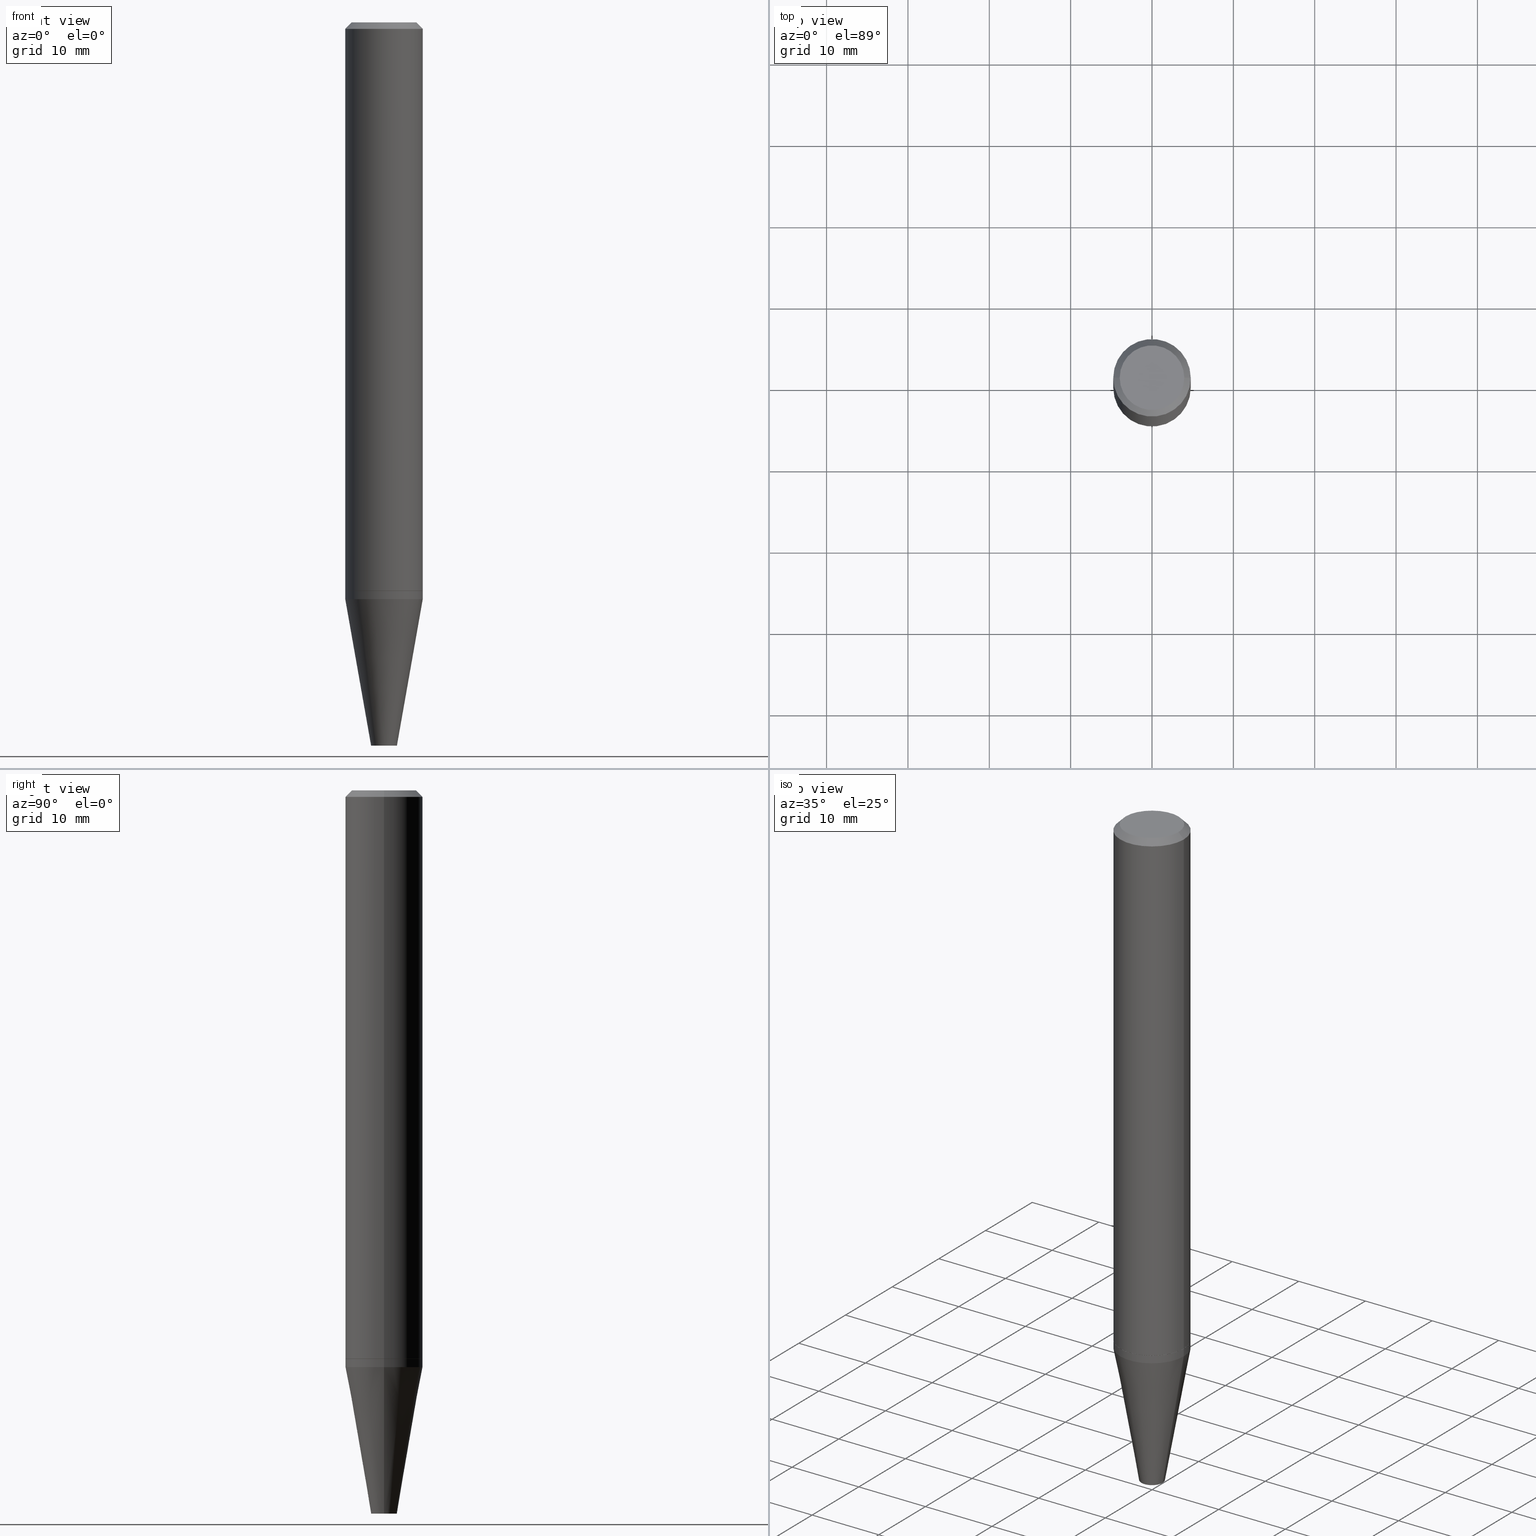
[diagram: canonical four-view strip — front | top / right | iso, engineering-drawing reading convention]
A machine part, canonical four-view strip (front | top / right | iso — engineering-drawing reading convention). The complete STEP part file that produces these views, byte-faithful:
ISO-10303-21;
HEADER;
FILE_DESCRIPTION (( 'STEP AP203' ),
    '1' );
FILE_NAME ('32327.STEP',
    '2024-03-04T15:06:20',
    ( '' ),
    ( '' ),
    'SwSTEP 2.0',
    'SolidWorks 2023',
    '' );
FILE_SCHEMA (( 'CONFIG_CONTROL_DESIGN' ));
ENDSEC;

DATA;
#1 = DIRECTION ( 'NONE',  ( 1.000000000000000000, -6.982962677686265922E-15, 0.000000000000000000 ) ) ;
#2 = AXIS2_PLACEMENT_3D ( 'NONE', #80, #145, #307 ) ;
#3 = ORIENTED_EDGE ( 'NONE', *, *, #171, .F. ) ;
#4 = EDGE_CURVE ( 'NONE', #332, #9, #268, .T. ) ;
#5 = EDGE_LOOP ( 'NONE', ( #388, #94, #312, #299 ) ) ;
#6 = DIRECTION ( 'NONE',  ( -2.445468806185136597E-29, 3.491481338843145583E-15, 1.000000000000000000 ) ) ;
#7 = CIRCLE ( 'NONE', #43, 0.1875000000000000278 ) ;
#8 = CC_DESIGN_APPROVAL ( #199, ( #249 ) ) ;
#9 = VERTEX_POINT ( 'NONE', #231 ) ;
#10 = DIRECTION ( 'NONE',  ( 1.000000000000000000, -6.982962677686256455E-15, 0.000000000000000000 ) ) ;
#11 = EDGE_LOOP ( 'NONE', ( #220, #30 ) ) ;
#12 = APPROVAL ( #97, 'UNSPECIFIED' ) ;
#13 = DIRECTION ( 'NONE',  ( -2.445468806185136597E-29, 3.491481338843145583E-15, 1.000000000000000000 ) ) ;
#14 = EDGE_LOOP ( 'NONE', ( #48, #384 ) ) ;
#15 = CARTESIAN_POINT ( 'NONE',  ( 8.559140821647976968E-29, -1.222018468595100934E-14, -3.500000000000000000 ) ) ;
#16 = CARTESIAN_POINT ( 'NONE',  ( 0.000000000000000000, 0.000000000000000000, 0.000000000000000000 ) ) ;
#17 = CIRCLE ( 'NONE', #262, 0.06250000000000005551 ) ;
#18 = LOCAL_TIME ( 10, 6, 20.00000000000000000, #287 ) ;
#19 = CYLINDRICAL_SURFACE ( 'NONE', #229, 0.1875000000000001943 ) ;
#20 = CARTESIAN_POINT ( 'NONE',  ( 4.364351673554776059E-16, 0.06249999999998784306, -3.500000000000000000 ) ) ;
#21 = DIRECTION ( 'NONE',  ( -2.445468806185136597E-29, 3.491481338843145583E-15, 1.000000000000000000 ) ) ;
#22 = EDGE_CURVE ( 'NONE', #316, #415, #394, .T. ) ;
#23 = DIRECTION ( 'NONE',  ( -2.438088387897960049E-29, 3.491481338843145188E-15, 1.000000000000000000 ) ) ;
#24 = CARTESIAN_POINT ( 'NONE',  ( -0.1870000000000003604, -8.272858765947260543E-15, -2.750000000000000000 ) ) ;
#25 = CONICAL_SURFACE ( 'NONE', #201, 0.06250000000000005551, 0.1745329251994259256 ) ;
#26 = PLANE ( 'NONE',  #345 ) ;
#27 = ORIENTED_EDGE ( 'NONE', *, *, #358, .T. ) ;
#28 = PERSON_AND_ORGANIZATION ( #371, #306 ) ;
#29 = ADVANCED_FACE ( 'NONE', ( #101 ), #120, .T. ) ;
#30 = ORIENTED_EDGE ( 'NONE', *, *, #351, .T. ) ;
#31 = APPROVAL_STATUS ( 'not_yet_approved' ) ;
#32 = ORIENTED_EDGE ( 'NONE', *, *, #221, .F. ) ;
#33 = ADVANCED_FACE ( 'NONE', ( #353 ), #68, .F. ) ;
#34 = SHAPE_DEFINITION_REPRESENTATION ( #376, #298 ) ;
#35 = DIRECTION ( 'NONE',  ( -2.445468806185136597E-29, 3.491481338843145583E-15, 1.000000000000000000 ) ) ;
#36 = CIRCLE ( 'NONE', #335, 0.1875000000000000278 ) ;
#37 = ORIENTED_EDGE ( 'NONE', *, *, #215, .T. ) ;
#38 = ADVANCED_FACE ( 'NONE', ( #198 ), #47, .T. ) ;
#39 = APPLICATION_CONTEXT ( 'configuration controlled 3d designs of mechanical parts and assemblies' ) ;
#40 = CARTESIAN_POINT ( 'NONE',  ( -0.1870000000000003604, -8.270209538773150130E-15, -2.750000000000000000 ) ) ;
#41 = CIRCLE ( 'NONE', #105, 0.1870000000000003604 ) ;
#42 = DIRECTION ( 'NONE',  ( 1.000000000000000000, -6.982962677686269077E-15, 0.000000000000000000 ) ) ;
#43 = AXIS2_PLACEMENT_3D ( 'NONE', #280, #83, #242 ) ;
#44 = LOCAL_TIME ( 10, 6, 20.00000000000000000, #224 ) ;
#45 = ORIENTED_EDGE ( 'NONE', *, *, #84, .T. ) ;
#46 = EDGE_CURVE ( 'NONE', #167, #91, #41, .T. ) ;
#47 = CYLINDRICAL_SURFACE ( 'NONE', #387, 0.1875000000000000278 ) ;
#48 = ORIENTED_EDGE ( 'NONE', *, *, #359, .F. ) ;
#49 = CARTESIAN_POINT ( 'NONE',  ( 0.1870000000000003604, -1.090738770254598344E-14, -2.750000000000000000 ) ) ;
#50 = ORIENTED_EDGE ( 'NONE', *, *, #170, .F. ) ;
#51 = LINE ( 'NONE', #123, #328 ) ;
#52 = DIRECTION ( 'NONE',  ( 0.000000000000000000, 0.000000000000000000, 1.000000000000000000 ) ) ;
#53 = DIRECTION ( 'NONE',  ( 2.438088387897960049E-29, -3.491481338843145188E-15, -1.000000000000000000 ) ) ;
#54 = EDGE_CURVE ( 'NONE', #236, #332, #225, .T. ) ;
#55 = CARTESIAN_POINT ( 'NONE',  ( 0.1562500000000000833, -1.233702489286406538E-15, 8.128494228692102296E-30 ) ) ;
#56 = ORIENTED_EDGE ( 'NONE', *, *, #99, .F. ) ;
#57 = DIRECTION ( 'NONE',  ( 1.000000000000000000, -6.982962677686265922E-15, 4.876176775795935793E-29 ) ) ;
#58 = EDGE_LOOP ( 'NONE', ( #134, #27, #130, #401 ) ) ;
#59 = AXIS2_PLACEMENT_3D ( 'NONE', #243, #207, #250 ) ;
#60 = FACE_OUTER_BOUND ( 'NONE', #289, .T. ) ;
#61 = DATE_AND_TIME ( #346, #18 ) ;
#62 = DATE_TIME_ROLE ( 'classification_date' ) ;
#63 = ORIENTED_EDGE ( 'NONE', *, *, #275, .T. ) ;
#64 = AXIS2_PLACEMENT_3D ( 'NONE', #357, #74, #42 ) ;
#65 = DIRECTION ( 'NONE',  ( 1.000000000000000000, -6.982962677686266711E-15, 4.876176775795935232E-29 ) ) ;
#66 = CIRCLE ( 'NONE', #226, 0.1875000000000000278 ) ;
#67 = AXIS2_PLACEMENT_3D ( 'NONE', #324, #327, #331 ) ;
#68 = PLANE ( 'NONE',  #168 ) ;
#69 = EDGE_CURVE ( 'NONE', #174, #9, #66, .T. ) ;
#70 = CARTESIAN_POINT ( 'NONE',  ( 0.1870000000000003604, -1.090738770254598344E-14, -2.750000000000000000 ) ) ;
#71 = AXIS2_PLACEMENT_3D ( 'NONE', #314, #378, #125 ) ;
#72 = ORIENTED_EDGE ( 'NONE', *, *, #54, .F. ) ;
#73 = DIRECTION ( 'NONE',  ( -2.445468806185136597E-29, 3.491481338843145583E-15, 1.000000000000000000 ) ) ;
#74 = DIRECTION ( 'NONE',  ( -2.445468806185136597E-29, 3.491481338843145583E-15, 1.000000000000000000 ) ) ;
#75 = VECTOR ( 'NONE', #273, 39.37007874015748143 ) ;
#76 = ORIENTED_EDGE ( 'NONE', *, *, #46, .F. ) ;
#77 = DIRECTION ( 'NONE',  ( 2.438088387897960049E-29, -3.491481338843145188E-15, -1.000000000000000000 ) ) ;
#78 = FACE_OUTER_BOUND ( 'NONE', #192, .T. ) ;
#79 = EDGE_LOOP ( 'NONE', ( #141, #76 ) ) ;
#80 = CARTESIAN_POINT ( 'NONE',  ( 7.642090019328561499E-31, -1.091087918388484350E-16, -0.03125000000000003469 ) ) ;
#81 =( NAMED_UNIT ( * ) PLANE_ANGLE_UNIT ( ) SI_UNIT ( $, .RADIAN. ) );
#82 = CARTESIAN_POINT ( 'NONE',  ( 0.000000000000000000, 0.000000000000000000, 0.000000000000000000 ) ) ;
#83 = DIRECTION ( 'NONE',  ( -2.445468806185136597E-29, 3.491481338843145583E-15, 1.000000000000000000 ) ) ;
#84 = EDGE_CURVE ( 'NONE', #183, #319, #173, .T. ) ;
#85 = AXIS2_PLACEMENT_3D ( 'NONE', #212, #277, #119 ) ;
#86 =( GEOMETRIC_REPRESENTATION_CONTEXT ( 3 ) GLOBAL_UNCERTAINTY_ASSIGNED_CONTEXT ( ( #230 ) ) GLOBAL_UNIT_ASSIGNED_CONTEXT ( ( #210, #81, #147 ) ) REPRESENTATION_CONTEXT ( 'NONE', 'WORKASPACE' ) );
#87 = FACE_OUTER_BOUND ( 'NONE', #79, .T. ) ;
#88 = PERSON_AND_ORGANIZATION ( #371, #306 ) ;
#89 = CARTESIAN_POINT ( 'NONE',  ( 0.1875000000000003886, -1.090913344321540415E-14, -2.749499999999999833 ) ) ;
#90 = CARTESIAN_POINT ( 'NONE',  ( 6.725039217009124520E-29, -9.601573681818649859E-15, -2.750000000000000000 ) ) ;
#91 = VERTEX_POINT ( 'NONE', #49 ) ;
#92 = DIRECTION ( 'NONE',  ( -1.000000000000000000, 6.982962677686265922E-15, -4.876176775795935793E-29 ) ) ;
#93 = PERSON_AND_ORGANIZATION_ROLE ( 'classification_officer' ) ;
#94 = ORIENTED_EDGE ( 'NONE', *, *, #99, .T. ) ;
#95 = AXIS2_PLACEMENT_3D ( 'NONE', #304, #368, #206 ) ;
#96 = VECTOR ( 'NONE', #143, 39.37007874015748143 ) ;
#97 = APPROVAL_STATUS ( 'not_yet_approved' ) ;
#98 = PERSON_AND_ORGANIZATION ( #371, #306 ) ;
#99 = EDGE_CURVE ( 'NONE', #332, #236, #155, .T. ) ;
#100 = ADVANCED_FACE ( 'NONE', ( #175 ), #189, .T. ) ;
#101 = FACE_OUTER_BOUND ( 'NONE', #395, .T. ) ;
#102 = AXIS2_PLACEMENT_3D ( 'NONE', #208, #337, #65 ) ;
#103 = DIRECTION ( 'NONE',  ( -2.445468806185136877E-29, 3.491481338843145188E-15, 1.000000000000000000 ) ) ;
#104 = EDGE_CURVE ( 'NONE', #91, #316, #269, .T. ) ;
#105 = AXIS2_PLACEMENT_3D ( 'NONE', #291, #73, #329 ) ;
#106 = LOCAL_TIME ( 10, 6, 20.00000000000000000, #126 ) ;
#107 = EDGE_LOOP ( 'NONE', ( #240, #377, #362, #127 ) ) ;
#108 = CC_DESIGN_DATE_AND_TIME_ASSIGNMENT ( #350, #382, ( #182 ) ) ;
#109 = CARTESIAN_POINT ( 'NONE',  ( 0.000000000000000000, 0.000000000000000000, 0.000000000000000000 ) ) ;
#110 = LINE ( 'NONE', #383, #139 ) ;
#111 = ORIENTED_EDGE ( 'NONE', *, *, #135, .T. ) ;
#112 = CARTESIAN_POINT ( 'NONE',  ( 0.06250000000000005551, -1.265661985330639943E-14, -3.500000000000000000 ) ) ;
#113 = LENGTH_MEASURE_WITH_UNIT ( LENGTH_MEASURE( 0.02539999999999999897 ), #247 );
#114 = CIRCLE ( 'NONE', #102, 0.1562500000000000833 ) ;
#115 = APPLICATION_CONTEXT ( 'configuration controlled 3d designs of mechanical parts and assemblies' ) ;
#116 = ORIENTED_EDGE ( 'NONE', *, *, #381, .T. ) ;
#117 = DIRECTION ( 'NONE',  ( 2.445468806185136597E-29, -3.491481338843145583E-15, -1.000000000000000000 ) ) ;
#118 = APPROVAL ( #339, 'UNSPECIFIED' ) ;
#119 = DIRECTION ( 'NONE',  ( -1.000000000000000000, 6.982962677686265922E-15, 0.000000000000000000 ) ) ;
#120 = CONICAL_SURFACE ( 'NONE', #286, 0.1870000000000003604, 0.7853981633973118326 ) ;
#121 = DIRECTION ( 'NONE',  ( -2.445468806185136597E-29, 3.491481338843145583E-15, 1.000000000000000000 ) ) ;
#122 = APPLICATION_PROTOCOL_DEFINITION ( 'international standard', 'config_control_design', 1994, #115 ) ;
#123 = CARTESIAN_POINT ( 'NONE',  ( -0.06250000000000005551, -1.177609547610094673E-14, -3.500000000000000000 ) ) ;
#124 = EDGE_CURVE ( 'NONE', #349, #319, #36, .T. ) ;
#125 = DIRECTION ( 'NONE',  ( -1.000000000000000000, 6.982962677686265922E-15, -4.876176775795935793E-29 ) ) ;
#126 = COORDINATED_UNIVERSAL_TIME_OFFSET ( 5, 0, .BEHIND. ) ;
#127 = ORIENTED_EDGE ( 'NONE', *, *, #276, .F. ) ;
#128 = CLOSED_SHELL ( 'NONE', ( #38, #161, #325, #100, #290, #33 ) ) ;
#129 = COORDINATED_UNIVERSAL_TIME_OFFSET ( 5, 0, .BEHIND. ) ;
#130 = ORIENTED_EDGE ( 'NONE', *, *, #124, .T. ) ;
#131 = LOCAL_TIME ( 10, 6, 20.00000000000000000, #129 ) ;
#132 = DATE_AND_TIME ( #282, #106 ) ;
#133 = MANIFOLD_SOLID_BREP ( 'Body-Move/Copy2[1]', #128 ) ;
#134 = ORIENTED_EDGE ( 'NONE', *, *, #340, .F. ) ;
#135 = EDGE_CURVE ( 'NONE', #91, #167, #288, .T. ) ;
#136 = VECTOR ( 'NONE', #103, 39.37007874015748143 ) ;
#137 = CARTESIAN_POINT ( 'NONE',  ( 1.309305502066242259E-15, 0.1874999999999904243, -2.750000000000000444 ) ) ;
#138 = VERTEX_POINT ( 'NONE', #354 ) ;
#139 = VECTOR ( 'NONE', #363, 39.37007874015748143 ) ;
#140 = CARTESIAN_POINT ( 'NONE',  ( 7.642090019328561499E-31, -1.091087918388484350E-16, -0.03125000000000003469 ) ) ;
#141 = ORIENTED_EDGE ( 'NONE', *, *, #135, .F. ) ;
#142 = CC_DESIGN_PERSON_AND_ORGANIZATION_ASSIGNMENT ( #278, #405, ( #284 ) ) ;
#143 = DIRECTION ( 'NONE',  ( 0.7071067811864509833, -2.468850131081245741E-15, 0.7071067811866440511 ) ) ;
#144 = DIRECTION ( 'NONE',  ( -2.445468806185136597E-29, 3.491481338843145583E-15, 1.000000000000000000 ) ) ;
#145 = DIRECTION ( 'NONE',  ( -2.445468806185136597E-29, 3.491481338843145583E-15, 1.000000000000000000 ) ) ;
#146 = VECTOR ( 'NONE', #152, 39.37007874015748143 ) ;
#147 =( NAMED_UNIT ( * ) SI_UNIT ( $, .STERADIAN. ) SOLID_ANGLE_UNIT ( ) );
#148 = PLANE ( 'NONE',  #179 ) ;
#149 = CARTESIAN_POINT ( 'NONE',  ( 6.725039217009124520E-29, -9.601573681818649859E-15, -2.750000000000000000 ) ) ;
#150 = ORIENTED_EDGE ( 'NONE', *, *, #381, .F. ) ;
#151 = FACE_OUTER_BOUND ( 'NONE', #5, .T. ) ;
#152 = DIRECTION ( 'NONE',  ( -0.7071067811864509833, 7.493145998870005484E-15, 0.7071067811866440511 ) ) ;
#153 = CIRCLE ( 'NONE', #2, 0.1875000000000000278 ) ;
#154 = DIRECTION ( 'NONE',  ( 1.000000000000000000, -6.982962677686266711E-15, 4.876176775795935232E-29 ) ) ;
#155 = CIRCLE ( 'NONE', #67, 0.1875000000000000278 ) ;
#156 = SECURITY_CLASSIFICATION_LEVEL ( 'unclassified' ) ;
#157 = ORIENTED_EDGE ( 'NONE', *, *, #46, .T. ) ;
#158 = CALENDAR_DATE ( 2024, 4, 3 ) ;
#159 = EDGE_LOOP ( 'NONE', ( #232, #409 ) ) ;
#160 = VECTOR ( 'NONE', #238, 39.37007874015748143 ) ;
#161 = ADVANCED_FACE ( 'NONE', ( #267 ), #25, .T. ) ;
#162 = LOCAL_TIME ( 10, 6, 20.00000000000000000, #320 ) ;
#163 = EDGE_LOOP ( 'NONE', ( #293, #63, #390, #56 ) ) ;
#164 = DIRECTION ( 'NONE',  ( -1.000000000000000000, 6.982962677686265922E-15, -4.876176775795935793E-29 ) ) ;
#165 = ORIENTED_EDGE ( 'NONE', *, *, #104, .T. ) ;
#166 = CONICAL_SURFACE ( 'NONE', #259, 0.1875000000000000278, 0.7853981633974467247 ) ;
#167 = VERTEX_POINT ( 'NONE', #40 ) ;
#168 = AXIS2_PLACEMENT_3D ( 'NONE', #137, #77, #164 ) ;
#169 = LINE ( 'NONE', #112, #160 ) ;
#170 = EDGE_CURVE ( 'NONE', #415, #319, #110, .T. ) ;
#171 = EDGE_CURVE ( 'NONE', #138, #236, #169, .T. ) ;
#172 = ORIENTED_EDGE ( 'NONE', *, *, #359, .T. ) ;
#173 = LINE ( 'NONE', #323, #369 ) ;
#174 = VERTEX_POINT ( 'NONE', #184 ) ;
#175 = FACE_OUTER_BOUND ( 'NONE', #163, .T. ) ;
#176 = APPLICATION_PROTOCOL_DEFINITION ( 'international standard', 'config_control_design', 1994, #39 ) ;
#177 = EDGE_LOOP ( 'NONE', ( #172, #356, #72, #3 ) ) ;
#178 = LINE ( 'NONE', #402, #326 ) ;
#179 = AXIS2_PLACEMENT_3D ( 'NONE', #149, #23, #57 ) ;
#180 = AXIS2_PLACEMENT_3D ( 'NONE', #16, #52, #244 ) ;
#181 = CARTESIAN_POINT ( 'NONE',  ( 7.642090019328561499E-31, -1.091087918388484350E-16, -0.03125000000000003469 ) ) ;
#182 = PRODUCT_DEFINITION ( 'UNKNOWN', '', #197, #294 ) ;
#183 = VERTEX_POINT ( 'NONE', #279 ) ;
#184 = CARTESIAN_POINT ( 'NONE',  ( 0.1875000000000000278, -1.091087918388482487E-14, -2.750000000000000000 ) ) ;
#185 = LINE ( 'NONE', #400, #271 ) ;
#186 = ORIENTED_EDGE ( 'NONE', *, *, #202, .F. ) ;
#187 = ADVANCED_FACE ( 'NONE', ( #87 ), #148, .F. ) ;
#188 = FACE_OUTER_BOUND ( 'NONE', #159, .T. ) ;
#189 = CONICAL_SURFACE ( 'NONE', #322, 0.06250000000000005551, 0.1745329251994259256 ) ;
#190 = CARTESIAN_POINT ( 'NONE',  ( -0.06250000000000005551, -1.009443285121860521E-14, -3.500000000000000000 ) ) ;
#191 = PERSON_AND_ORGANIZATION_ROLE ( 'creator' ) ;
#192 = EDGE_LOOP ( 'NONE', ( #50, #347, #296, #303 ) ) ;
#193 = PERSON_AND_ORGANIZATION ( #371, #306 ) ;
#194 = ADVANCED_FACE ( 'NONE', ( #311 ), #361, .T. ) ;
#195 = ORIENTED_EDGE ( 'NONE', *, *, #104, .F. ) ;
#196 = AXIS2_PLACEMENT_3D ( 'NONE', #396, #258, #386 ) ;
#197 = PRODUCT_DEFINITION_FORMATION_WITH_SPECIFIED_SOURCE ( 'ANY', '', #284, .NOT_KNOWN. ) ;
#198 = FACE_OUTER_BOUND ( 'NONE', #107, .T. ) ;
#199 = APPROVAL ( #31, 'UNSPECIFIED' ) ;
#200 = DIRECTION ( 'NONE',  ( 1.000000000000000000, -6.982962677686261189E-15, 0.000000000000000000 ) ) ;
#201 = AXIS2_PLACEMENT_3D ( 'NONE', #393, #144, #204 ) ;
#202 = EDGE_CURVE ( 'NONE', #316, #349, #344, .T. ) ;
#203 = DIRECTION ( 'NONE',  ( -2.445468806185136597E-29, 3.491481338843145583E-15, 1.000000000000000000 ) ) ;
#204 = DIRECTION ( 'NONE',  ( 1.000000000000000000, -6.982962677686256455E-15, 0.000000000000000000 ) ) ;
#205 = DIRECTION ( 'NONE',  ( 1.000000000000000000, -6.982962677686261977E-15, 0.000000000000000000 ) ) ;
#206 = DIRECTION ( 'NONE',  ( 1.000000000000000000, -6.982962677686256455E-15, 0.000000000000000000 ) ) ;
#207 = DIRECTION ( 'NONE',  ( -2.445468806185136597E-29, 3.491481338843145583E-15, 1.000000000000000000 ) ) ;
#208 = CARTESIAN_POINT ( 'NONE',  ( 0.000000000000000000, 0.000000000000000000, 0.000000000000000000 ) ) ;
#209 = AXIS2_PLACEMENT_3D ( 'NONE', #90, #21, #315 ) ;
#210 =( CONVERSION_BASED_UNIT ( 'INCH', #113 ) LENGTH_UNIT ( ) NAMED_UNIT ( #260 ) );
#211 = APPROVAL_PERSON_ORGANIZATION ( #411, #12, #285 ) ;
#212 = CARTESIAN_POINT ( 'NONE',  ( 7.642090019328561499E-31, -1.091087918388484350E-16, -0.03125000000000003469 ) ) ;
#213 = CARTESIAN_POINT ( 'NONE',  ( 0.1875000000000000278, -1.418414293905023320E-15, -0.03125000000000003469 ) ) ;
#214 = EDGE_CURVE ( 'NONE', #321, #332, #51, .T. ) ;
#215 = EDGE_CURVE ( 'NONE', #319, #349, #153, .T. ) ;
#216 = FACE_OUTER_BOUND ( 'NONE', #330, .T. ) ;
#217 = FACE_OUTER_BOUND ( 'NONE', #223, .T. ) ;
#218 = PLANE ( 'NONE',  #71 ) ;
#219 = APPROVAL_ROLE ( '' ) ;
#220 = ORIENTED_EDGE ( 'NONE', *, *, #69, .T. ) ;
#221 = EDGE_CURVE ( 'NONE', #415, #316, #237, .T. ) ;
#222 = APPROVAL_DATE_TIME ( #318, #12 ) ;
#223 = EDGE_LOOP ( 'NONE', ( #150, #157, #165, #32 ) ) ;
#224 = COORDINATED_UNIVERSAL_TIME_OFFSET ( 5, 0, .BEHIND. ) ;
#225 = CIRCLE ( 'NONE', #235, 0.1875000000000000278 ) ;
#226 = AXIS2_PLACEMENT_3D ( 'NONE', #297, #6, #392 ) ;
#227 = CARTESIAN_POINT ( 'NONE',  ( 6.725039217009124520E-29, -9.601573681818649859E-15, -2.750000000000000000 ) ) ;
#228 = ORIENTED_EDGE ( 'NONE', *, *, #22, .F. ) ;
#229 = AXIS2_PLACEMENT_3D ( 'NONE', #82, #281, #410 ) ;
#230 = UNCERTAINTY_MEASURE_WITH_UNIT (LENGTH_MEASURE( 1.000000000000000082E-05 ), #210, 'distance_accuracy_value', 'NONE');
#231 = CARTESIAN_POINT ( 'NONE',  ( -0.1875000000000000278, -8.341038139302364435E-15, -2.750000000000000000 ) ) ;
#232 = ORIENTED_EDGE ( 'NONE', *, *, #248, .T. ) ;
#233 = ADVANCED_FACE ( 'NONE', ( #60 ), #166, .T. ) ;
#234 = DIRECTION ( 'NONE',  ( 1.000000000000000000, -6.982962677686265922E-15, 4.876176775795935793E-29 ) ) ;
#235 = AXIS2_PLACEMENT_3D ( 'NONE', #360, #203, #200 ) ;
#236 = VERTEX_POINT ( 'NONE', #404 ) ;
#237 = CIRCLE ( 'NONE', #59, 0.1875000000000003886 ) ;
#238 = DIRECTION ( 'NONE',  ( 0.1736481776669234200, 2.225859148293818106E-15, 0.9848077530122092416 ) ) ;
#239 = DIRECTION ( 'NONE',  ( 0.7071067811865464625, -7.319954787623252890E-15, -0.7071067811865486830 ) ) ;
#240 = ORIENTED_EDGE ( 'NONE', *, *, #54, .T. ) ;
#241 = CARTESIAN_POINT ( 'NONE',  ( -0.1875000000000000278, -3.522200736943847330E-15, -0.03125000000000003469 ) ) ;
#242 = DIRECTION ( 'NONE',  ( 1.000000000000000000, -6.982962677686261189E-15, 0.000000000000000000 ) ) ;
#243 = CARTESIAN_POINT ( 'NONE',  ( 6.723816482606031719E-29, -9.599827941149227567E-15, -2.749499999999999833 ) ) ;
#244 = DIRECTION ( 'NONE',  ( 1.000000000000000000, 0.000000000000000000, 0.000000000000000000 ) ) ;
#245 = DIRECTION ( 'NONE',  ( -2.445468806185136597E-29, 3.491481338843145583E-15, 1.000000000000000000 ) ) ;
#246 = AXIS2_PLACEMENT_3D ( 'NONE', #403, #308, #342 ) ;
#247 =( LENGTH_UNIT ( ) NAMED_UNIT ( * ) SI_UNIT ( $, .METRE. ) );
#248 = EDGE_CURVE ( 'NONE', #183, #251, #305, .T. ) ;
#249 = SECURITY_CLASSIFICATION ( '', '', #156 ) ;
#250 = DIRECTION ( 'NONE',  ( 1.000000000000000000, -6.982962677686269077E-15, 0.000000000000000000 ) ) ;
#251 = VERTEX_POINT ( 'NONE', #55 ) ;
#252 = CARTESIAN_POINT ( 'NONE',  ( -0.1875000000000000278, -8.412770226336266860E-15, -2.791089772547757253 ) ) ;
#253 = CALENDAR_DATE ( 2024, 4, 3 ) ;
#254 = APPROVAL_DATE_TIME ( #132, #118 ) ;
#255 = CALENDAR_DATE ( 2024, 4, 3 ) ;
#256 = CARTESIAN_POINT ( 'NONE',  ( -0.1875000000000000278, 1.332267629550188046E-15, -9.223003294227947991E-30 ) ) ;
#257 = ORIENTED_EDGE ( 'NONE', *, *, #124, .F. ) ;
#258 = DIRECTION ( 'NONE',  ( -2.445468806185136597E-29, 3.491481338843145583E-15, 1.000000000000000000 ) ) ;
#259 = AXIS2_PLACEMENT_3D ( 'NONE', #181, #117, #317 ) ;
#260 = DIMENSIONAL_EXPONENTS ( 1.000000000000000000, 0.000000000000000000, 0.000000000000000000, 0.000000000000000000, 0.000000000000000000, 0.000000000000000000, 0.000000000000000000 ) ;
#261 = MANIFOLD_SOLID_BREP ( 'Body-Move/Copy2[2]', #295 ) ;
#262 = AXIS2_PLACEMENT_3D ( 'NONE', #272, #245, #334 ) ;
#263 = CC_DESIGN_APPROVAL ( #118, ( #182 ) ) ;
#264 = DIRECTION ( 'NONE',  ( -2.445468806185136597E-29, 3.491481338843145583E-15, 1.000000000000000000 ) ) ;
#265 = ORIENTED_EDGE ( 'NONE', *, *, #248, .F. ) ;
#266 = CC_DESIGN_DATE_AND_TIME_ASSIGNMENT ( #380, #62, ( #249 ) ) ;
#267 = FACE_OUTER_BOUND ( 'NONE', #177, .T. ) ;
#268 = LINE ( 'NONE', #256, #136 ) ;
#269 = LINE ( 'NONE', #70, #96 ) ;
#270 = ORIENTED_EDGE ( 'NONE', *, *, #22, .T. ) ;
#271 = VECTOR ( 'NONE', #239, 39.37007874015748143 ) ;
#272 = CARTESIAN_POINT ( 'NONE',  ( 8.559140821647976968E-29, -1.222018468595100934E-14, -3.500000000000000000 ) ) ;
#273 = DIRECTION ( 'NONE',  ( -2.445468806185136877E-29, 3.491481338843145188E-15, 1.000000000000000000 ) ) ;
#274 = CARTESIAN_POINT ( 'NONE',  ( -0.1875000000000003886, -8.267560311599038141E-15, -2.749499999999999833 ) ) ;
#275 = EDGE_CURVE ( 'NONE', #321, #138, #17, .T. ) ;
#276 = EDGE_CURVE ( 'NONE', #236, #174, #178, .T. ) ;
#277 = DIRECTION ( 'NONE',  ( 2.445468806185136597E-29, -3.491481338843145583E-15, -1.000000000000000000 ) ) ;
#278 = PERSON_AND_ORGANIZATION ( #371, #306 ) ;
#279 = CARTESIAN_POINT ( 'NONE',  ( -0.1562500000000000833, 1.145642314307903329E-15, -7.821033771059395014E-30 ) ) ;
#280 = CARTESIAN_POINT ( 'NONE',  ( 6.725039217009124520E-29, -9.601573681818649859E-15, -2.750000000000000000 ) ) ;
#281 = DIRECTION ( 'NONE',  ( -2.445468806185136597E-29, 3.491481338843145583E-15, 1.000000000000000000 ) ) ;
#282 = CALENDAR_DATE ( 2024, 4, 3 ) ;
#283 = ORIENTED_EDGE ( 'NONE', *, *, #170, .T. ) ;
#284 = PRODUCT ( '32327', '32327', '', ( #375 ) ) ;
#285 = APPROVAL_ROLE ( '' ) ;
#286 = AXIS2_PLACEMENT_3D ( 'NONE', #227, #301, #205 ) ;
#287 = COORDINATED_UNIVERSAL_TIME_OFFSET ( 5, 0, .BEHIND. ) ;
#288 = CIRCLE ( 'NONE', #196, 0.1870000000000003604 ) ;
#289 = EDGE_LOOP ( 'NONE', ( #343, #265, #45, #37 ) ) ;
#290 = ADVANCED_FACE ( 'NONE', ( #151 ), #341, .T. ) ;
#291 = CARTESIAN_POINT ( 'NONE',  ( 6.725039217009124520E-29, -9.601573681818649859E-15, -2.750000000000000000 ) ) ;
#292 = AXIS2_PLACEMENT_3D ( 'NONE', #310, #338, #154 ) ;
#293 = ORIENTED_EDGE ( 'NONE', *, *, #214, .F. ) ;
#294 = DESIGN_CONTEXT ( 'detailed design', #115, 'design' ) ;
#295 = CLOSED_SHELL ( 'NONE', ( #194, #333, #29, #187, #391, #416, #233, #309 ) ) ;
#296 = ORIENTED_EDGE ( 'NONE', *, *, #202, .T. ) ;
#297 = CARTESIAN_POINT ( 'NONE',  ( 6.725039217009124520E-29, -9.601573681818649859E-15, -2.750000000000000000 ) ) ;
#298 = ADVANCED_BREP_SHAPE_REPRESENTATION ( '32327', ( #133, #261, #180 ), #86 ) ;
#299 = ORIENTED_EDGE ( 'NONE', *, *, #351, .F. ) ;
#300 = CC_DESIGN_PERSON_AND_ORGANIZATION_ASSIGNMENT ( #348, #93, ( #249 ) ) ;
#301 = DIRECTION ( 'NONE',  ( -2.445468806185136597E-29, 3.491481338843145583E-15, 1.000000000000000000 ) ) ;
#302 = DIRECTION ( 'NONE',  ( -0.7071067811865464625, 2.468850131082245228E-15, -0.7071067811865486830 ) ) ;
#303 = ORIENTED_EDGE ( 'NONE', *, *, #215, .F. ) ;
#304 = CARTESIAN_POINT ( 'NONE',  ( 8.559140821647976968E-29, -1.222018468595100934E-14, -3.500000000000000000 ) ) ;
#305 = CIRCLE ( 'NONE', #292, 0.1562500000000000833 ) ;
#306 = ORGANIZATION ( 'UNSPECIFIED', 'UNSPECIFIED', '' ) ;
#307 = DIRECTION ( 'NONE',  ( 1.000000000000000000, -6.982962677686265922E-15, 0.000000000000000000 ) ) ;
#308 = DIRECTION ( 'NONE',  ( -2.445468806185136597E-29, 3.491481338843145583E-15, 1.000000000000000000 ) ) ;
#309 = ADVANCED_FACE ( 'NONE', ( #188 ), #218, .F. ) ;
#310 = CARTESIAN_POINT ( 'NONE',  ( 0.000000000000000000, 0.000000000000000000, 0.000000000000000000 ) ) ;
#311 = FACE_OUTER_BOUND ( 'NONE', #58, .T. ) ;
#312 = ORIENTED_EDGE ( 'NONE', *, *, #276, .T. ) ;
#313 = PRODUCT_RELATED_PRODUCT_CATEGORY ( 'detail', '', ( #284 ) ) ;
#314 = CARTESIAN_POINT ( 'NONE',  ( 0.000000000000000000, 0.000000000000000000, 0.000000000000000000 ) ) ;
#315 = DIRECTION ( 'NONE',  ( 1.000000000000000000, -6.982962677686261977E-15, 0.000000000000000000 ) ) ;
#316 = VERTEX_POINT ( 'NONE', #89 ) ;
#317 = DIRECTION ( 'NONE',  ( -1.000000000000000000, 6.982962677686265922E-15, 0.000000000000000000 ) ) ;
#318 = DATE_AND_TIME ( #253, #44 ) ;
#319 = VERTEX_POINT ( 'NONE', #241 ) ;
#320 = COORDINATED_UNIVERSAL_TIME_OFFSET ( 5, 0, .BEHIND. ) ;
#321 = VERTEX_POINT ( 'NONE', #190 ) ;
#322 = AXIS2_PLACEMENT_3D ( 'NONE', #15, #13, #10 ) ;
#323 = CARTESIAN_POINT ( 'NONE',  ( -0.1875000000000000278, 1.200196710227326696E-15, -0.03125000000000003469 ) ) ;
#324 = CARTESIAN_POINT ( 'NONE',  ( 6.825522974027907843E-29, -9.745037855886453130E-15, -2.791089772547757253 ) ) ;
#325 = ADVANCED_FACE ( 'NONE', ( #399 ), #26, .T. ) ;
#326 = VECTOR ( 'NONE', #372, 39.37007874015748143 ) ;
#327 = DIRECTION ( 'NONE',  ( -2.445468806185136597E-29, 3.491481338843145583E-15, 1.000000000000000000 ) ) ;
#328 = VECTOR ( 'NONE', #365, 39.37007874015748143 ) ;
#329 = DIRECTION ( 'NONE',  ( 1.000000000000000000, -6.982962677686261977E-15, 0.000000000000000000 ) ) ;
#330 = EDGE_LOOP ( 'NONE', ( #270, #283, #257, #186 ) ) ;
#331 = DIRECTION ( 'NONE',  ( 1.000000000000000000, -6.982962677686261189E-15, 0.000000000000000000 ) ) ;
#332 = VERTEX_POINT ( 'NONE', #252 ) ;
#333 = ADVANCED_FACE ( 'NONE', ( #216 ), #19, .T. ) ;
#334 = DIRECTION ( 'NONE',  ( 1.000000000000000000, -6.982962677686256455E-15, 0.000000000000000000 ) ) ;
#335 = AXIS2_PLACEMENT_3D ( 'NONE', #140, #35, #1 ) ;
#336 = APPROVAL_PERSON_ORGANIZATION ( #193, #199, #219 ) ;
#337 = DIRECTION ( 'NONE',  ( -2.445468806185136597E-29, 3.491481338843145583E-15, 1.000000000000000000 ) ) ;
#338 = DIRECTION ( 'NONE',  ( -2.445468806185136597E-29, 3.491481338843145583E-15, 1.000000000000000000 ) ) ;
#339 = APPROVAL_STATUS ( 'not_yet_approved' ) ;
#340 = EDGE_CURVE ( 'NONE', #251, #183, #114, .T. ) ;
#341 = CYLINDRICAL_SURFACE ( 'NONE', #370, 0.1875000000000000278 ) ;
#342 = DIRECTION ( 'NONE',  ( 1.000000000000000000, -6.982962677686265922E-15, 4.876176775795935793E-29 ) ) ;
#343 = ORIENTED_EDGE ( 'NONE', *, *, #358, .F. ) ;
#344 = LINE ( 'NONE', #407, #75 ) ;
#345 = AXIS2_PLACEMENT_3D ( 'NONE', #20, #53, #92 ) ;
#346 = CALENDAR_DATE ( 2024, 4, 3 ) ;
#347 = ORIENTED_EDGE ( 'NONE', *, *, #221, .T. ) ;
#348 = PERSON_AND_ORGANIZATION ( #371, #306 ) ;
#349 = VERTEX_POINT ( 'NONE', #213 ) ;
#350 = DATE_AND_TIME ( #255, #162 ) ;
#351 = EDGE_CURVE ( 'NONE', #9, #174, #7, .T. ) ;
#352 = APPROVAL_PERSON_ORGANIZATION ( #88, #118, #397 ) ;
#353 = FACE_OUTER_BOUND ( 'NONE', #11, .T. ) ;
#354 = CARTESIAN_POINT ( 'NONE',  ( 0.06250000000000005551, -1.265661985330639943E-14, -3.500000000000000000 ) ) ;
#355 = CC_DESIGN_SECURITY_CLASSIFICATION ( #249, ( #197 ) ) ;
#356 = ORIENTED_EDGE ( 'NONE', *, *, #214, .T. ) ;
#357 = CARTESIAN_POINT ( 'NONE',  ( 6.723816482606031719E-29, -9.599827941149227567E-15, -2.749499999999999833 ) ) ;
#358 = EDGE_CURVE ( 'NONE', #251, #349, #185, .T. ) ;
#359 = EDGE_CURVE ( 'NONE', #138, #321, #385, .T. ) ;
#360 = CARTESIAN_POINT ( 'NONE',  ( 6.825522974027907843E-29, -9.745037855886453130E-15, -2.791089772547757253 ) ) ;
#361 = CONICAL_SURFACE ( 'NONE', #85, 0.1875000000000000278, 0.7853981633974467247 ) ;
#362 = ORIENTED_EDGE ( 'NONE', *, *, #69, .F. ) ;
#363 = DIRECTION ( 'NONE',  ( -2.445468806185136877E-29, 3.491481338843145188E-15, 1.000000000000000000 ) ) ;
#364 = CC_DESIGN_PERSON_AND_ORGANIZATION_ASSIGNMENT ( #98, #379, ( #197 ) ) ;
#365 = DIRECTION ( 'NONE',  ( -0.1736481776669234200, 4.672282404182295014E-15, 0.9848077530122092416 ) ) ;
#366 = LINE ( 'NONE', #24, #146 ) ;
#367 = DIRECTION ( 'NONE',  ( 1.000000000000000000, -6.982962677686265922E-15, 4.876176775795935793E-29 ) ) ;
#368 = DIRECTION ( 'NONE',  ( -2.445468806185136597E-29, 3.491481338843145583E-15, 1.000000000000000000 ) ) ;
#369 = VECTOR ( 'NONE', #302, 39.37007874015748143 ) ;
#370 = AXIS2_PLACEMENT_3D ( 'NONE', #374, #121, #367 ) ;
#371 = PERSON ( 'UNSPECIFIED', 'UNSPECIFIED', 'UNSPECIFIED', ('UNSPECIFIED'), ('UNSPECIFIED'), ('UNSPECIFIED') ) ;
#372 = DIRECTION ( 'NONE',  ( -2.445468806185136877E-29, 3.491481338843145188E-15, 1.000000000000000000 ) ) ;
#373 = CC_DESIGN_PERSON_AND_ORGANIZATION_ASSIGNMENT ( #412, #413, ( #182 ) ) ;
#374 = CARTESIAN_POINT ( 'NONE',  ( 0.000000000000000000, 0.000000000000000000, 0.000000000000000000 ) ) ;
#375 = MECHANICAL_CONTEXT ( 'NONE', #39, 'mechanical' ) ;
#376 = PRODUCT_DEFINITION_SHAPE ( 'NONE', 'NONE',  #182 ) ;
#377 = ORIENTED_EDGE ( 'NONE', *, *, #4, .T. ) ;
#378 = DIRECTION ( 'NONE',  ( 2.438088387897960049E-29, -3.491481338843145188E-15, -1.000000000000000000 ) ) ;
#379 = PERSON_AND_ORGANIZATION_ROLE ( 'design_supplier' ) ;
#380 = DATE_AND_TIME ( #158, #131 ) ;
#381 = EDGE_CURVE ( 'NONE', #167, #415, #366, .T. ) ;
#382 = DATE_TIME_ROLE ( 'creation_date' ) ;
#383 = CARTESIAN_POINT ( 'NONE',  ( -0.1875000000000001943, 1.332267629550189229E-15, -9.223003294227957800E-30 ) ) ;
#384 = ORIENTED_EDGE ( 'NONE', *, *, #275, .F. ) ;
#385 = CIRCLE ( 'NONE', #95, 0.06250000000000005551 ) ;
#386 = DIRECTION ( 'NONE',  ( 1.000000000000000000, -6.982962677686261977E-15, 0.000000000000000000 ) ) ;
#387 = AXIS2_PLACEMENT_3D ( 'NONE', #109, #264, #234 ) ;
#388 = ORIENTED_EDGE ( 'NONE', *, *, #4, .F. ) ;
#389 = CONICAL_SURFACE ( 'NONE', #209, 0.1870000000000003604, 0.7853981633973118326 ) ;
#390 = ORIENTED_EDGE ( 'NONE', *, *, #171, .T. ) ;
#391 = ADVANCED_FACE ( 'NONE', ( #217 ), #389, .T. ) ;
#392 = DIRECTION ( 'NONE',  ( 1.000000000000000000, -6.982962677686261189E-15, 0.000000000000000000 ) ) ;
#393 = CARTESIAN_POINT ( 'NONE',  ( 8.559140821647976968E-29, -1.222018468595100934E-14, -3.500000000000000000 ) ) ;
#394 = CIRCLE ( 'NONE', #64, 0.1875000000000003886 ) ;
#395 = EDGE_LOOP ( 'NONE', ( #111, #116, #228, #195 ) ) ;
#396 = CARTESIAN_POINT ( 'NONE',  ( 6.725039217009124520E-29, -9.601573681818649859E-15, -2.750000000000000000 ) ) ;
#397 = APPROVAL_ROLE ( '' ) ;
#398 = CC_DESIGN_PERSON_AND_ORGANIZATION_ASSIGNMENT ( #28, #191, ( #197 ) ) ;
#399 = FACE_OUTER_BOUND ( 'NONE', #14, .T. ) ;
#400 = CARTESIAN_POINT ( 'NONE',  ( 0.1875000000000000278, -1.395452166421010677E-15, -0.03125000000000003469 ) ) ;
#401 = ORIENTED_EDGE ( 'NONE', *, *, #84, .F. ) ;
#402 = CARTESIAN_POINT ( 'NONE',  ( 0.1875000000000000278, -1.309305502066175008E-15, 9.142831454617381013E-30 ) ) ;
#403 = CARTESIAN_POINT ( 'NONE',  ( 0.000000000000000000, 0.000000000000000000, 0.000000000000000000 ) ) ;
#404 = CARTESIAN_POINT ( 'NONE',  ( 0.1875000000000000278, -1.105434335795262656E-14, -2.791089772547757253 ) ) ;
#405 = PERSON_AND_ORGANIZATION_ROLE ( 'design_owner' ) ;
#406 = CC_DESIGN_APPROVAL ( #12, ( #197 ) ) ;
#407 = CARTESIAN_POINT ( 'NONE',  ( 0.1875000000000001943, -1.309305502066176192E-15, 9.142831454617389421E-30 ) ) ;
#408 = CYLINDRICAL_SURFACE ( 'NONE', #246, 0.1875000000000001943 ) ;
#409 = ORIENTED_EDGE ( 'NONE', *, *, #340, .T. ) ;
#410 = DIRECTION ( 'NONE',  ( 1.000000000000000000, -6.982962677686265922E-15, 4.876176775795935793E-29 ) ) ;
#411 = PERSON_AND_ORGANIZATION ( #371, #306 ) ;
#412 = PERSON_AND_ORGANIZATION ( #371, #306 ) ;
#413 = PERSON_AND_ORGANIZATION_ROLE ( 'creator' ) ;
#414 = APPROVAL_DATE_TIME ( #61, #199 ) ;
#415 = VERTEX_POINT ( 'NONE', #274 ) ;
#416 = ADVANCED_FACE ( 'NONE', ( #78 ), #408, .T. ) ;
ENDSEC;
END-ISO-10303-21;
